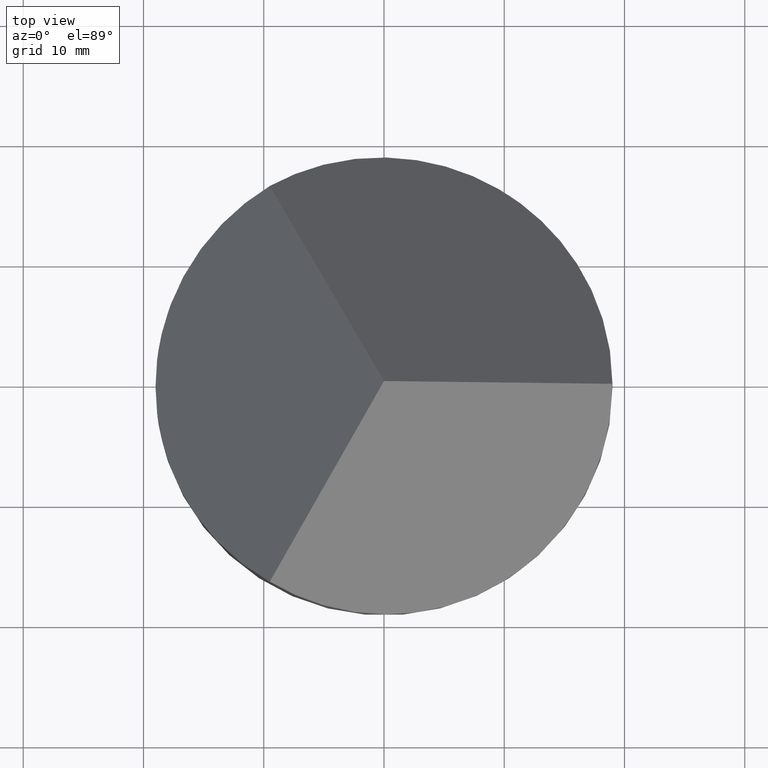
[diagram: clean part render]
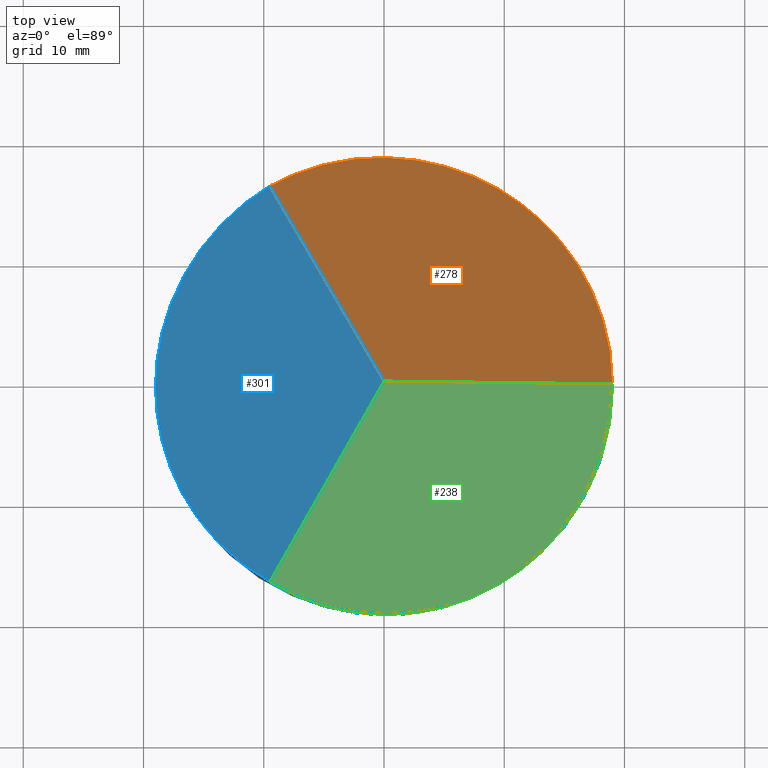
[diagram: same view with three faces highlighted in distinct colors, each labeled with its STEP entity id]
A machine part, top view with three faces highlighted in distinct colors.
Their STEP definitions:

[orange] entity #278 — the highlighted planar face has unit normal (0.4082, 0.7071, 0.5774).
#12 = CARTESIAN_POINT ( 'NONE',  ( 21.36491780749591400, 0.0000000000000000000, 13.39585933566258700 ) ) ;
#15 = CARTESIAN_POINT ( 'NONE',  ( 19.00000000000001400, 5.354801039138735000E-032, 15.06776144854982000 ) ) ;
#44 = DIRECTION ( 'NONE',  ( 0.4082200218682777700, 0.7070578185427395200, 0.5774302165486711000 ) ) ;
#45 = LINE ( 'NONE', #161, #157 ) ;
#53 =( BOUNDED_CURVE ( )  B_SPLINE_CURVE ( 3, ( #56, #213, #285, #62 ),
 .UNSPECIFIED., .F., .F. ) 
 B_SPLINE_CURVE_WITH_KNOTS ( ( 4, 4 ),
 ( 5.235987755982986200, 7.330382858376182800 ),
 .UNSPECIFIED. ) 
 CURVE ( )  GEOMETRIC_REPRESENTATION_ITEM ( )  RATIONAL_B_SPLINE_CURVE ( ( 1.000000000000000000, 0.6666666666666663000, 0.6666666666666663000, 1.000000000000000000 ) ) 
 REPRESENTATION_ITEM ( '' )  );
#56 = CARTESIAN_POINT ( 'NONE',  ( 19.00000000000001400, 5.354801039138735000E-032, 15.06776144854982000 ) ) ;
#57 = FACE_OUTER_BOUND ( 'NONE', #287, .T. ) ;
#62 = CARTESIAN_POINT ( 'NONE',  ( -9.500000000000021300, 16.45448267190432300, 15.06776144854974600 ) ) ;
#75 = CARTESIAN_POINT ( 'NONE',  ( -9.500000000000021300, 16.45448267190432300, 15.06776144854974600 ) ) ;
#88 = EDGE_CURVE ( 'NONE', #198, #191, #45, .T. ) ;
#113 = EDGE_CURVE ( 'NONE', #134, #191, #253, .T. ) ;
#132 = EDGE_CURVE ( 'NONE', #134, #198, #53, .T. ) ;
#134 = VERTEX_POINT ( 'NONE', #15 ) ;
#141 = DIRECTION ( 'NONE',  ( 0.0000000000000000000, -0.6325343505460012700, 0.7745323075116675700 ) ) ;
#157 = VECTOR ( 'NONE', #306, 1000.000000000000100 ) ;
#161 = CARTESIAN_POINT ( 'NONE',  ( 7.073520084914156800, -12.25169617543019200, 38.50139043989909000 ) ) ;
#174 = PLANE ( 'NONE',  #230 ) ;
#190 = CARTESIAN_POINT ( 'NONE',  ( -8.673617379884035500E-015, -3.469446951953613800E-015, 28.49999999999999600 ) ) ;
#191 = VERTEX_POINT ( 'NONE', #190 ) ;
#198 = VERTEX_POINT ( 'NONE', #75 ) ;
#213 = CARTESIAN_POINT ( 'NONE',  ( 19.00000000000000400, 16.45448267190435800, -5.080596378625568100 ) ) ;
#220 = DIRECTION ( 'NONE',  ( -0.8165531063768113300, 1.848892764340220800E-032, 0.5772703218305784700 ) ) ;
#230 = AXIS2_PLACEMENT_3D ( 'NONE', #233, #44, #141 ) ;
#233 = CARTESIAN_POINT ( 'NONE',  ( 32.04293994002429000, -18.49999999999991800, 28.50000000000000000 ) ) ;
#253 = LINE ( 'NONE', #12, #257 ) ;
#257 = VECTOR ( 'NONE', #220, 1000.000000000000200 ) ;
#261 = ORIENTED_EDGE ( 'NONE', *, *, #88, .T. ) ;
#278 = ADVANCED_FACE ( 'NONE', ( #57 ), #174, .T. ) ;
#285 = CARTESIAN_POINT ( 'NONE',  ( 4.749999999999983100, 24.68172400785652300, -5.080596378625613400 ) ) ;
#287 = EDGE_LOOP ( 'NONE', ( #305, #307, #261 ) ) ;
#305 = ORIENTED_EDGE ( 'NONE', *, *, #113, .F. ) ;
#306 = DIRECTION ( 'NONE',  ( 0.4082765531884057200, -0.7071557336614134900, 0.5772703218305811300 ) ) ;
#307 = ORIENTED_EDGE ( 'NONE', *, *, #132, .T. ) ;

[blue] entity #301 — the highlighted planar face has unit normal (0.8164, 0, -0.5774).
#5 = ORIENTED_EDGE ( 'NONE', *, *, #251, .T. ) ;
#24 = CARTESIAN_POINT ( 'NONE',  ( -19.00000000000000400, -6.954482671904324700, 1.635522897099544300 ) ) ;
#45 = LINE ( 'NONE', #161, #157 ) ;
#46 = CARTESIAN_POINT ( 'NONE',  ( -9.500000000000016000, -16.45448267190433000, 15.06776144854975300 ) ) ;
#63 = CARTESIAN_POINT ( 'NONE',  ( -9.500000000000021300, 16.45448267190432300, 15.06776144854974600 ) ) ;
#65 = FACE_OUTER_BOUND ( 'NONE', #216, .T. ) ;
#69 = DIRECTION ( 'NONE',  ( 0.8164400437365592100, 0.0000000000000000000, -0.5774302165486712200 ) ) ;
#72 = CARTESIAN_POINT ( 'NONE',  ( -7.073520084914154200, -12.25169617543021200, 18.49860956010091000 ) ) ;
#73 = AXIS2_PLACEMENT_3D ( 'NONE', #74, #69, #146 ) ;
#74 = CARTESIAN_POINT ( 'NONE',  ( 0.0000000000000000000, -24.50000000000000000, 28.49999999999999600 ) ) ;
#75 = CARTESIAN_POINT ( 'NONE',  ( -9.500000000000021300, 16.45448267190432300, 15.06776144854974600 ) ) ;
#76 = CARTESIAN_POINT ( 'NONE',  ( -15.52275866404783900, -12.97724133595215600, 6.552063436623012800 ) ) ;
#88 = EDGE_CURVE ( 'NONE', #198, #191, #45, .T. ) ;
#89 = CARTESIAN_POINT ( 'NONE',  ( -19.00000000000000000, 0.0000000000000000000, 1.635522897099547900 ) ) ;
#95 = VERTEX_POINT ( 'NONE', #89 ) ;
#102 = ORIENTED_EDGE ( 'NONE', *, *, #256, .F. ) ;
#116 = CARTESIAN_POINT ( 'NONE',  ( -19.00000000000000000, 0.0000000000000000000, 1.635522897099547900 ) ) ;
#117 = PLANE ( 'NONE',  #73 ) ;
#118 = LINE ( 'NONE', #72, #175 ) ;
#146 = DIRECTION ( 'NONE',  ( -0.5774302165486712200, 0.0000000000000000000, -0.8164400437365592100 ) ) ;
#157 = VECTOR ( 'NONE', #306, 1000.000000000000100 ) ;
#161 = CARTESIAN_POINT ( 'NONE',  ( 7.073520084914156800, -12.25169617543019200, 38.50139043989909000 ) ) ;
#167 = ORIENTED_EDGE ( 'NONE', *, *, #202, .F. ) ;
#171 = CARTESIAN_POINT ( 'NONE',  ( -19.00000000000000400, 6.954482671904324700, 1.635522897099544300 ) ) ;
#175 = VECTOR ( 'NONE', #271, 1000.000000000000200 ) ;
#184 =( BOUNDED_CURVE ( )  B_SPLINE_CURVE ( 3, ( #46, #76, #24, #116 ),
 .UNSPECIFIED., .F., .T. ) 
 B_SPLINE_CURVE_WITH_KNOTS ( ( 4, 4 ),
 ( 5.235987755982989700, 6.283185307179586200 ),
 .UNSPECIFIED. ) 
 CURVE ( )  GEOMETRIC_REPRESENTATION_ITEM ( )  RATIONAL_B_SPLINE_CURVE ( ( 1.000000000000000000, 0.9106836025229592100, 0.9106836025229592100, 1.000000000000000000 ) ) 
 REPRESENTATION_ITEM ( '' )  );
#190 = CARTESIAN_POINT ( 'NONE',  ( -8.673617379884035500E-015, -3.469446951953613800E-015, 28.49999999999999600 ) ) ;
#191 = VERTEX_POINT ( 'NONE', #190 ) ;
#193 =( BOUNDED_CURVE ( )  B_SPLINE_CURVE ( 3, ( #232, #171, #276, #63 ),
 .UNSPECIFIED., .F., .F. ) 
 B_SPLINE_CURVE_WITH_KNOTS ( ( 4, 4 ),
 ( 0.0000000000000000000, 1.047197551196596500 ),
 .UNSPECIFIED. ) 
 CURVE ( )  GEOMETRIC_REPRESENTATION_ITEM ( )  RATIONAL_B_SPLINE_CURVE ( ( 1.000000000000000000, 0.9106836025229592100, 0.9106836025229592100, 1.000000000000000000 ) ) 
 REPRESENTATION_ITEM ( '' )  );
#198 = VERTEX_POINT ( 'NONE', #75 ) ;
#202 = EDGE_CURVE ( 'NONE', #95, #198, #193, .T. ) ;
#216 = EDGE_LOOP ( 'NONE', ( #102, #5, #291, #167 ) ) ;
#232 = CARTESIAN_POINT ( 'NONE',  ( -19.00000000000000000, 0.0000000000000000000, 1.635522897099547900 ) ) ;
#251 = EDGE_CURVE ( 'NONE', #264, #191, #118, .T. ) ;
#256 = EDGE_CURVE ( 'NONE', #264, #95, #184, .T. ) ;
#264 = VERTEX_POINT ( 'NONE', #293 ) ;
#271 = DIRECTION ( 'NONE',  ( 0.4082765531884055000, 0.7071557336614139300, 0.5772703218305809100 ) ) ;
#276 = CARTESIAN_POINT ( 'NONE',  ( -15.52275866404784700, 12.97724133595215400, 6.552063436623003900 ) ) ;
#291 = ORIENTED_EDGE ( 'NONE', *, *, #88, .F. ) ;
#293 = CARTESIAN_POINT ( 'NONE',  ( -9.500000000000016000, -16.45448267190433000, 15.06776144854975300 ) ) ;
#301 = ADVANCED_FACE ( 'NONE', ( #65 ), #117, .F. ) ;
#306 = DIRECTION ( 'NONE',  ( 0.4082765531884057200, -0.7071557336614134900, 0.5772703218305811300 ) ) ;

[green] entity #238 — the highlighted planar face has unit normal (-0.4082, 0.7071, -0.5774).
#1 = DIRECTION ( 'NONE',  ( 0.0000000000000000000, 0.6325343505460016000, 0.7745323075116672400 ) ) ;
#12 = CARTESIAN_POINT ( 'NONE',  ( 21.36491780749591400, 0.0000000000000000000, 13.39585933566258700 ) ) ;
#15 = CARTESIAN_POINT ( 'NONE',  ( 19.00000000000001400, 5.354801039138735000E-032, 15.06776144854982000 ) ) ;
#19 = AXIS2_PLACEMENT_3D ( 'NONE', #147, #170, #1 ) ;
#58 = ORIENTED_EDGE ( 'NONE', *, *, #113, .T. ) ;
#64 = FACE_OUTER_BOUND ( 'NONE', #247, .T. ) ;
#72 = CARTESIAN_POINT ( 'NONE',  ( -7.073520084914154200, -12.25169617543021200, 18.49860956010091000 ) ) ;
#79 =( BOUNDED_CURVE ( )  B_SPLINE_CURVE ( 3, ( #199, #294, #100, #169 ),
 .UNSPECIFIED., .F., .F. ) 
 B_SPLINE_CURVE_WITH_KNOTS ( ( 4, 4 ),
 ( 5.235987755982986200, 7.330382858376182800 ),
 .UNSPECIFIED. ) 
 CURVE ( )  GEOMETRIC_REPRESENTATION_ITEM ( )  RATIONAL_B_SPLINE_CURVE ( ( 1.000000000000000000, 0.6666666666666663000, 0.6666666666666663000, 1.000000000000000000 ) ) 
 REPRESENTATION_ITEM ( '' )  );
#91 = ORIENTED_EDGE ( 'NONE', *, *, #251, .F. ) ;
#100 = CARTESIAN_POINT ( 'NONE',  ( 4.749999999999993800, -24.68172400785652300, -5.080596378625580600 ) ) ;
#113 = EDGE_CURVE ( 'NONE', #134, #191, #253, .T. ) ;
#118 = LINE ( 'NONE', #72, #175 ) ;
#134 = VERTEX_POINT ( 'NONE', #15 ) ;
#147 = CARTESIAN_POINT ( 'NONE',  ( 24.68172400785654500, 14.24999999999995000, 28.50000000000000000 ) ) ;
#169 = CARTESIAN_POINT ( 'NONE',  ( -9.500000000000016000, -16.45448267190433000, 15.06776144854975300 ) ) ;
#170 = DIRECTION ( 'NONE',  ( -0.4082200218682779400, 0.7070578185427391900, -0.5774302165486714400 ) ) ;
#175 = VECTOR ( 'NONE', #271, 1000.000000000000200 ) ;
#190 = CARTESIAN_POINT ( 'NONE',  ( -8.673617379884035500E-015, -3.469446951953613800E-015, 28.49999999999999600 ) ) ;
#191 = VERTEX_POINT ( 'NONE', #190 ) ;
#199 = CARTESIAN_POINT ( 'NONE',  ( 19.00000000000001400, 5.354801039138735000E-032, 15.06776144854982000 ) ) ;
#220 = DIRECTION ( 'NONE',  ( -0.8165531063768113300, 1.848892764340220800E-032, 0.5772703218305784700 ) ) ;
#238 = ADVANCED_FACE ( 'NONE', ( #64 ), #273, .F. ) ;
#242 = EDGE_CURVE ( 'NONE', #134, #264, #79, .T. ) ;
#247 = EDGE_LOOP ( 'NONE', ( #58, #91, #248 ) ) ;
#248 = ORIENTED_EDGE ( 'NONE', *, *, #242, .F. ) ;
#251 = EDGE_CURVE ( 'NONE', #264, #191, #118, .T. ) ;
#253 = LINE ( 'NONE', #12, #257 ) ;
#257 = VECTOR ( 'NONE', #220, 1000.000000000000200 ) ;
#264 = VERTEX_POINT ( 'NONE', #293 ) ;
#271 = DIRECTION ( 'NONE',  ( 0.4082765531884055000, 0.7071557336614139300, 0.5772703218305809100 ) ) ;
#273 = PLANE ( 'NONE',  #19 ) ;
#293 = CARTESIAN_POINT ( 'NONE',  ( -9.500000000000016000, -16.45448267190433000, 15.06776144854975300 ) ) ;
#294 = CARTESIAN_POINT ( 'NONE',  ( 19.00000000000001400, -16.45448267190434400, -5.080596378625531700 ) ) ;